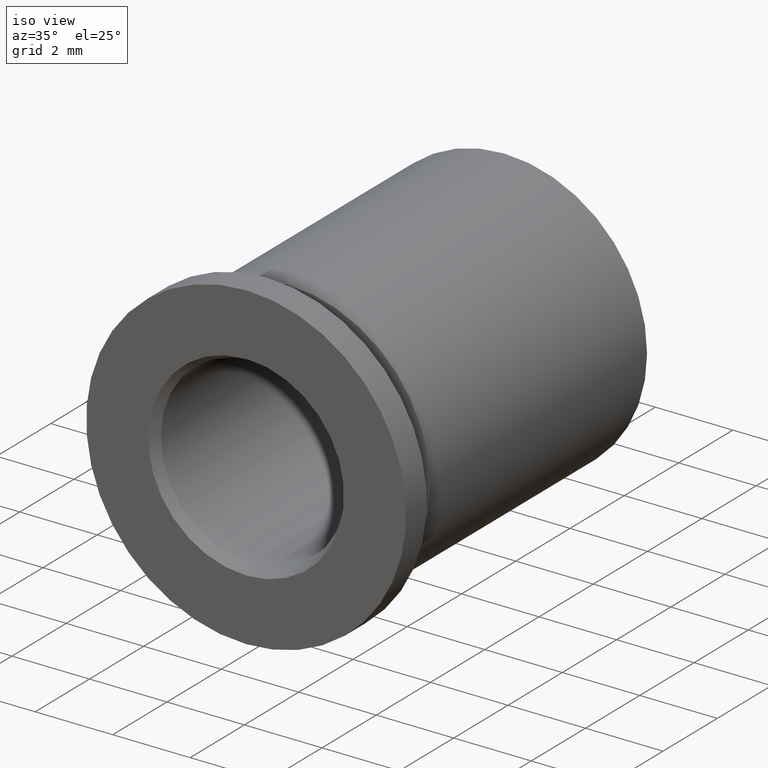
[diagram: clean part render]
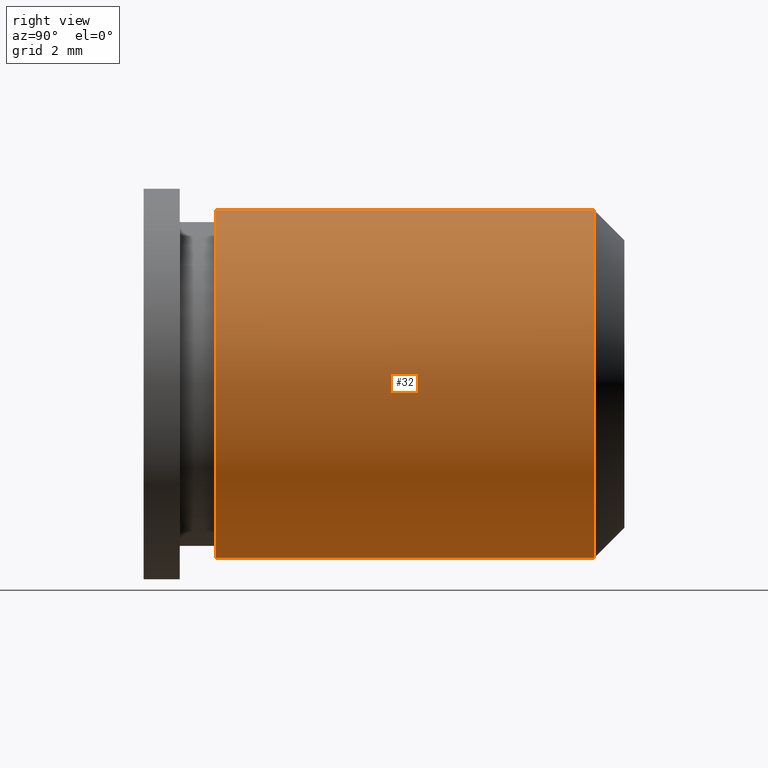
[diagram: tour spotlight — one face highlighted and labeled with its STEP entity id]
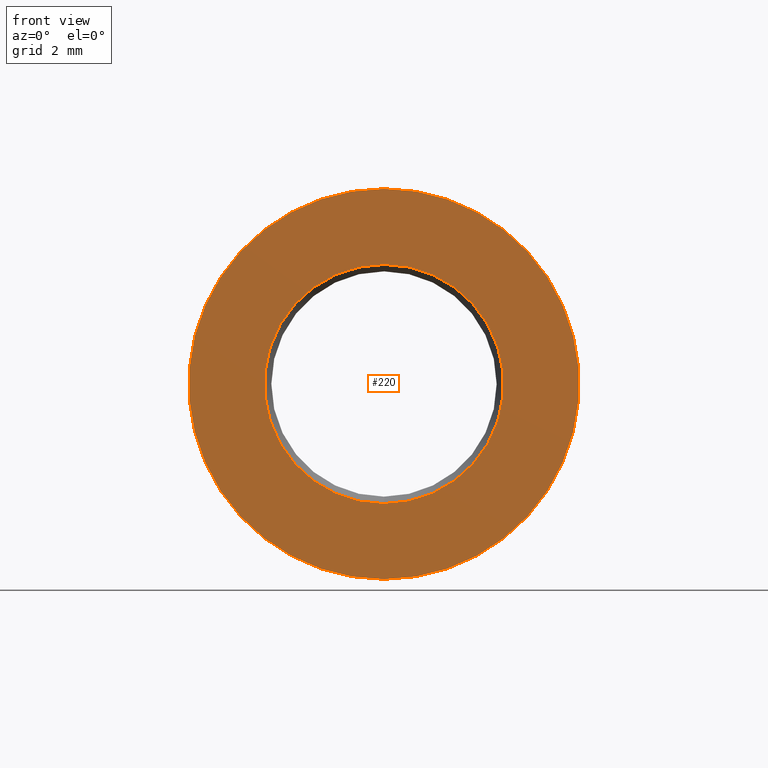
[diagram: tour spotlight — one face highlighted and labeled with its STEP entity id]
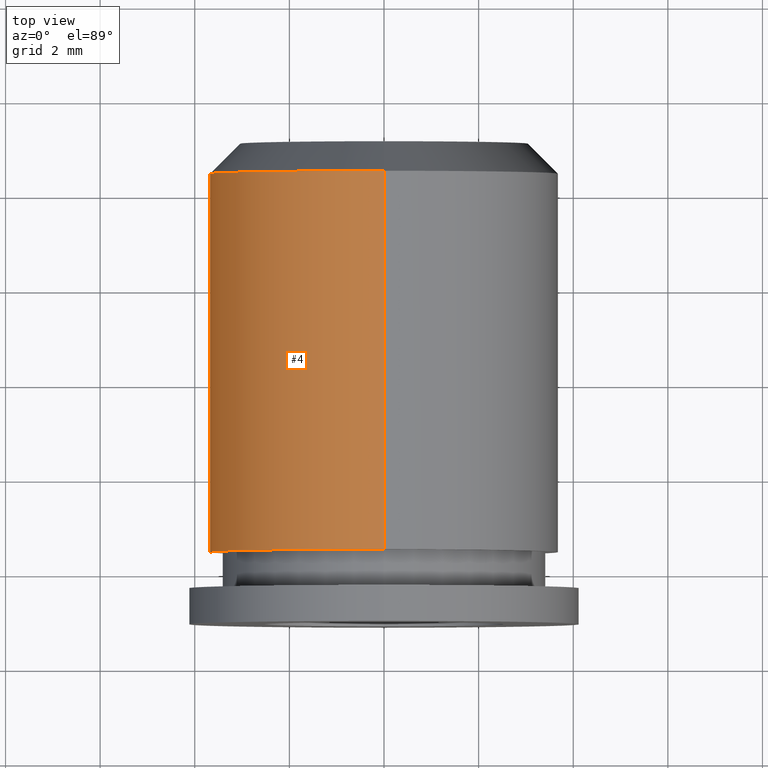
[diagram: tour spotlight — one face highlighted and labeled with its STEP entity id]
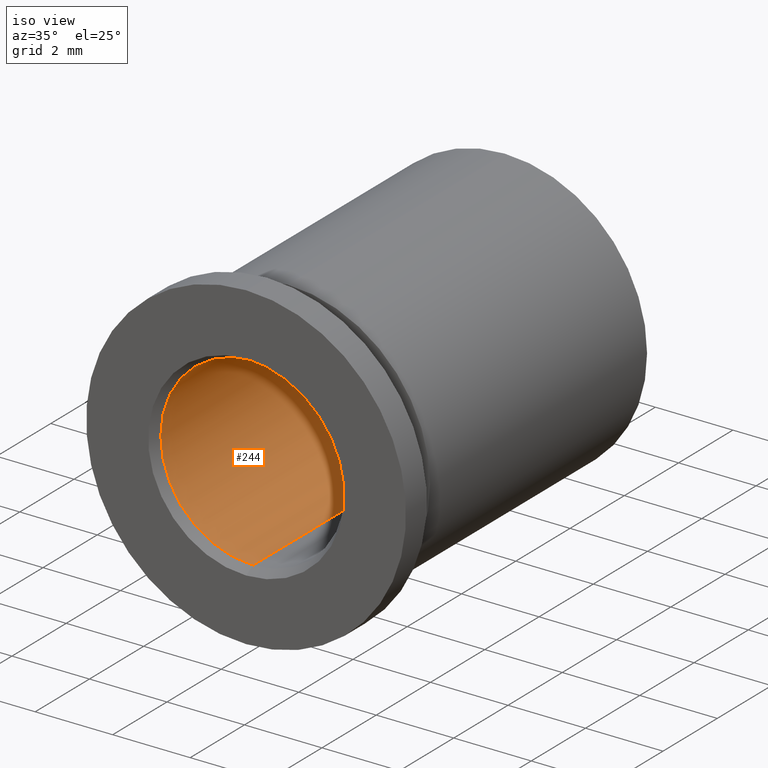
[diagram: tour spotlight — one face highlighted and labeled with its STEP entity id]
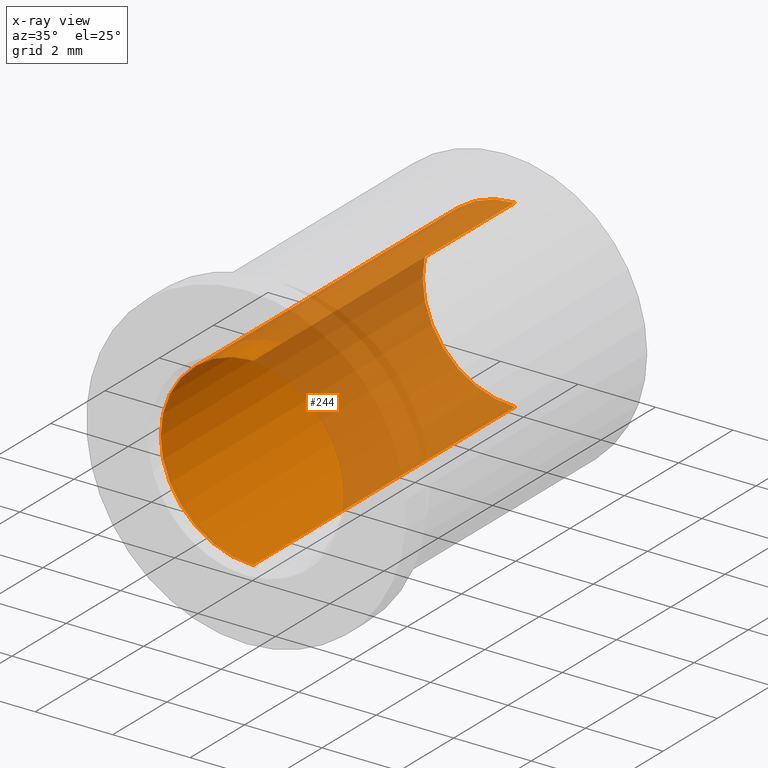
[diagram: x-ray of the same camera — body ghosted, this tour face saturated]
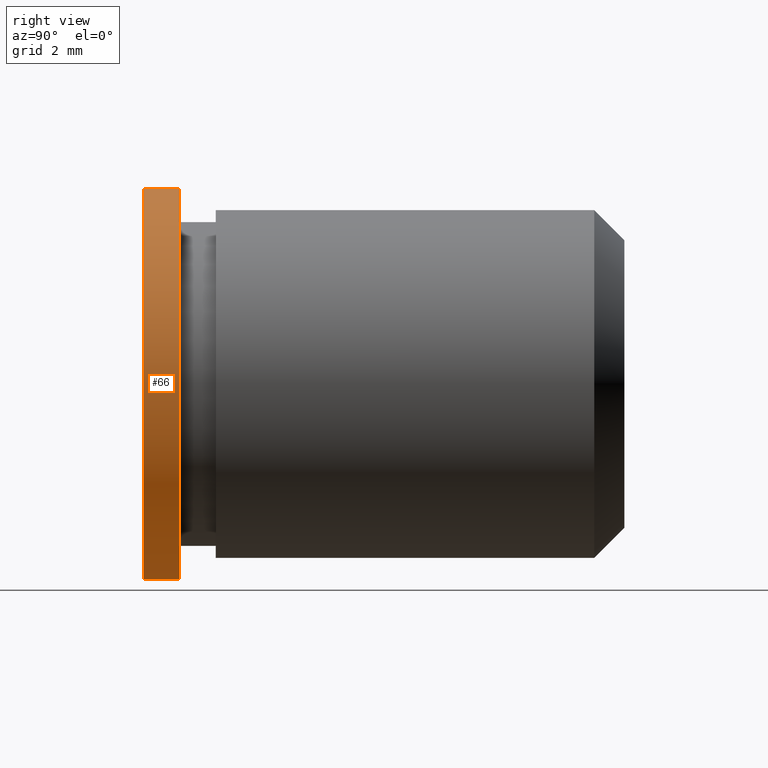
[diagram: tour spotlight — one face highlighted and labeled with its STEP entity id]
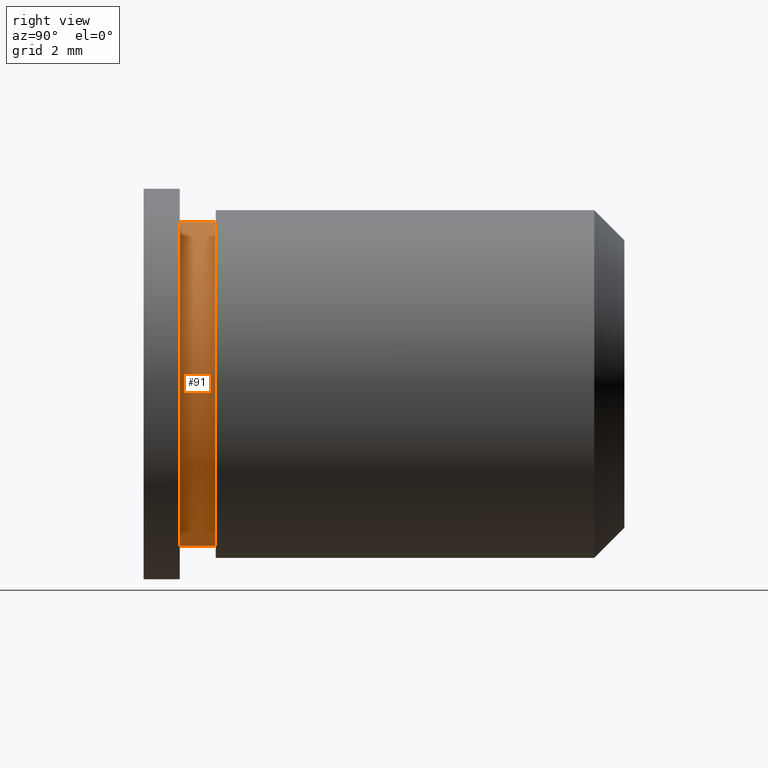
[diagram: tour spotlight — one face highlighted and labeled with its STEP entity id]
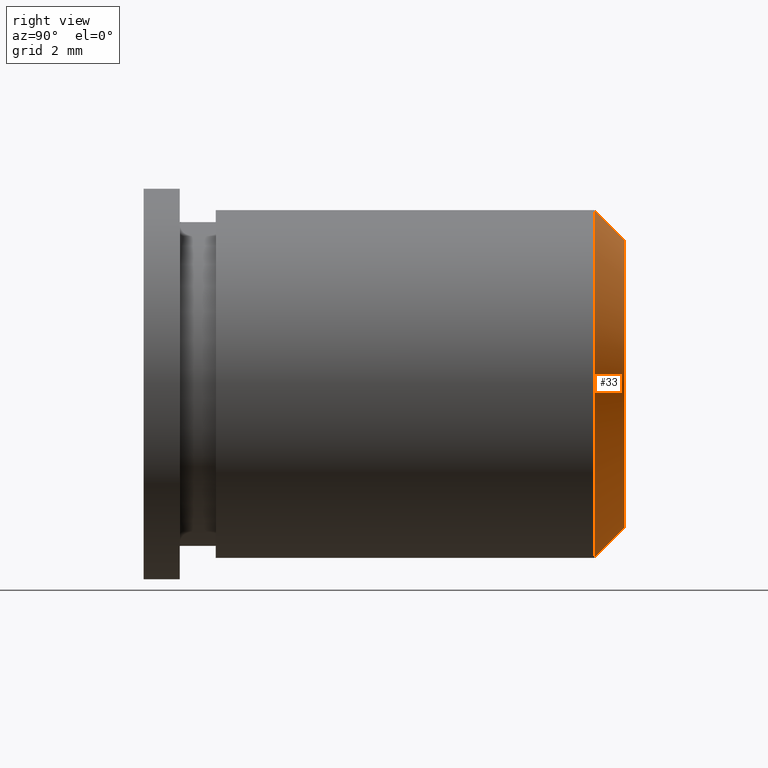
[diagram: tour spotlight — one face highlighted and labeled with its STEP entity id]
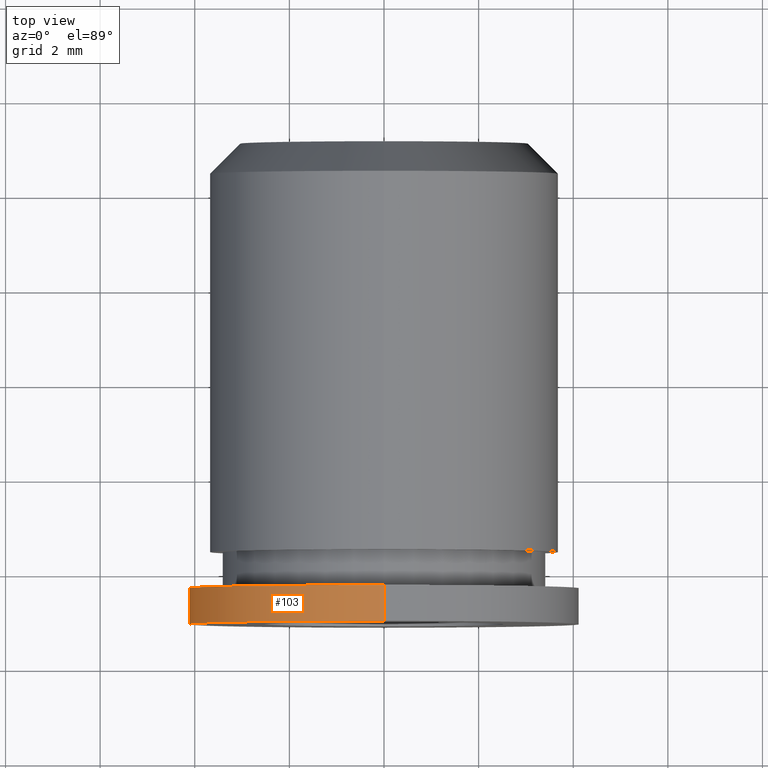
[diagram: tour spotlight — one face highlighted and labeled with its STEP entity id]
A machine part: a face-by-face anatomy tour. The part has 18 B-rep faces; the first image is the clean iso view, then the 8 largest visible faces are spotlighted one at a time (largest first), each with its STEP entity span.

Face 1 — right view, entity #32. In plain terms, the highlighted cylindrical surface (partial cylindrical patch) has radius 3.6766 mm, axis along (0, 1, 0).
Definition (entity closure, byte-faithful):
#28 = ORIENTED_EDGE ( 'NONE', *, *, #61, .F. ) ;
#30 = VERTEX_POINT ( 'NONE', #255 ) ;
#32 = ADVANCED_FACE ( 'NONE', ( #254 ), #332, .T. ) ;
#36 = ORIENTED_EDGE ( 'NONE', *, *, #90, .F. ) ;
#61 = EDGE_CURVE ( 'NONE', #125, #30, #291, .T. ) ;
#72 = EDGE_CURVE ( 'NONE', #87, #30, #517, .T. ) ;
#74 = ORIENTED_EDGE ( 'NONE', *, *, #100, .T. ) ;
#75 = VERTEX_POINT ( 'NONE', #396 ) ;
#87 = VERTEX_POINT ( 'NONE', #483 ) ;
#88 = ORIENTED_EDGE ( 'NONE', *, *, #72, .T. ) ;
#90 = EDGE_CURVE ( 'NONE', #75, #125, #430, .T. ) ;
#100 = EDGE_CURVE ( 'NONE', #75, #87, #419, .T. ) ;
#111 = EDGE_LOOP ( 'NONE', ( #74, #88, #28, #36 ) ) ;
#125 = VERTEX_POINT ( 'NONE', #646 ) ;
#214 = DIRECTION ( 'NONE',  ( 0.0000000000000000000, 0.0000000000000000000, 1.000000000000000000 ) ) ;
#215 = DIRECTION ( 'NONE',  ( 0.0000000000000000000, 1.000000000000000000, 0.0000000000000000000 ) ) ;
#254 = FACE_OUTER_BOUND ( 'NONE', #111, .T. ) ;
#255 = CARTESIAN_POINT ( 'NONE',  ( 1.958852332682297700E-015, 4.445000000000000300, -3.676649999999996000 ) ) ;
#291 = CIRCLE ( 'NONE', #347, 3.676649999999996000 ) ;
#304 = AXIS2_PLACEMENT_3D ( 'NONE', #367, #342, #328 ) ;
#328 = DIRECTION ( 'NONE',  ( 0.0000000000000000000, 0.0000000000000000000, 1.000000000000000000 ) ) ;
#332 = CYLINDRICAL_SURFACE ( 'NONE', #304, 3.676649999999997300 ) ;
#342 = DIRECTION ( 'NONE',  ( 0.0000000000000000000, 1.000000000000000000, 0.0000000000000000000 ) ) ;
#346 = CARTESIAN_POINT ( 'NONE',  ( 1.508592567273786700E-015, 4.445000000000000300, 0.0000000000000000000 ) ) ;
#347 = AXIS2_PLACEMENT_3D ( 'NONE', #346, #215, #214 ) ;
#367 = CARTESIAN_POINT ( 'NONE',  ( 1.508592567273786700E-015, 5.080000000000000100, 0.0000000000000000000 ) ) ;
#396 = CARTESIAN_POINT ( 'NONE',  ( 1.508592567273786700E-015, -3.556000000000000900, 3.676649999999999100 ) ) ;
#415 = DIRECTION ( 'NONE',  ( 0.0000000000000000000, 0.0000000000000000000, 1.000000000000000000 ) ) ;
#416 = DIRECTION ( 'NONE',  ( 0.0000000000000000000, 1.000000000000000000, 0.0000000000000000000 ) ) ;
#417 = CARTESIAN_POINT ( 'NONE',  ( 1.508592567273786700E-015, -3.556000000000000900, 0.0000000000000000000 ) ) ;
#418 = AXIS2_PLACEMENT_3D ( 'NONE', #417, #416, #415 ) ;
#419 = CIRCLE ( 'NONE', #418, 3.676649999999999100 ) ;
#427 = DIRECTION ( 'NONE',  ( 0.0000000000000000000, 1.000000000000000000, 0.0000000000000000000 ) ) ;
#428 = VECTOR ( 'NONE', #427, 1000.000000000000000 ) ;
#429 = CARTESIAN_POINT ( 'NONE',  ( 1.508592567273786700E-015, 5.080000000000000100, 3.676649999999997300 ) ) ;
#430 = LINE ( 'NONE', #429, #428 ) ;
#440 = DIRECTION ( 'NONE',  ( 0.0000000000000000000, 1.000000000000000000, 0.0000000000000000000 ) ) ;
#441 = VECTOR ( 'NONE', #440, 1000.000000000000000 ) ;
#442 = CARTESIAN_POINT ( 'NONE',  ( 1.958852332682297700E-015, 5.080000000000000100, -3.676649999999997300 ) ) ;
#483 = CARTESIAN_POINT ( 'NONE',  ( 1.958852332682298100E-015, -3.556000000000000900, -3.676649999999999100 ) ) ;
#517 = LINE ( 'NONE', #442, #441 ) ;
#646 = CARTESIAN_POINT ( 'NONE',  ( 1.508592567273786700E-015, 4.445000000000000300, 3.676649999999996000 ) ) ;

Face 2 — front view, entity #220. In plain terms, the highlighted planar face has unit normal (0, 1, 0).
Definition (entity closure, byte-faithful):
#50 = ORIENTED_EDGE ( 'NONE', *, *, #108, .F. ) ;
#102 = EDGE_CURVE ( 'NONE', #122, #123, #499, .T. ) ;
#108 = EDGE_CURVE ( 'NONE', #123, #122, #408, .T. ) ;
#122 = VERTEX_POINT ( 'NONE', #649 ) ;
#123 = VERTEX_POINT ( 'NONE', #580 ) ;
#165 = ORIENTED_EDGE ( 'NONE', *, *, #274, .T. ) ;
#219 = ORIENTED_EDGE ( 'NONE', *, *, #102, .F. ) ;
#220 = ADVANCED_FACE ( 'NONE', ( #714, #765 ), #766, .F. ) ;
#221 = EDGE_LOOP ( 'NONE', ( #286, #165 ) ) ;
#222 = EDGE_LOOP ( 'NONE', ( #219, #50 ) ) ;
#223 = EDGE_CURVE ( 'NONE', #224, #232, #705, .T. ) ;
#224 = VERTEX_POINT ( 'NONE', #693 ) ;
#232 = VERTEX_POINT ( 'NONE', #692 ) ;
#274 = EDGE_CURVE ( 'NONE', #232, #224, #697, .T. ) ;
#286 = ORIENTED_EDGE ( 'NONE', *, *, #223, .T. ) ;
#403 = AXIS2_PLACEMENT_3D ( 'NONE', #533, #532, #531 ) ;
#408 = CIRCLE ( 'NONE', #403, 4.127499999999999500 ) ;
#495 = DIRECTION ( 'NONE',  ( 0.0000000000000000000, 0.0000000000000000000, 1.000000000000000000 ) ) ;
#496 = DIRECTION ( 'NONE',  ( 0.0000000000000000000, 1.000000000000000000, 0.0000000000000000000 ) ) ;
#497 = CARTESIAN_POINT ( 'NONE',  ( 1.508592567273786700E-015, -5.080000000000000100, 0.0000000000000000000 ) ) ;
#498 = AXIS2_PLACEMENT_3D ( 'NONE', #497, #496, #495 ) ;
#499 = CIRCLE ( 'NONE', #498, 4.127499999999999500 ) ;
#531 = DIRECTION ( 'NONE',  ( 0.0000000000000000000, 0.0000000000000000000, 1.000000000000000000 ) ) ;
#532 = DIRECTION ( 'NONE',  ( 0.0000000000000000000, 1.000000000000000000, 0.0000000000000000000 ) ) ;
#533 = CARTESIAN_POINT ( 'NONE',  ( 1.508592567273786700E-015, -5.080000000000000100, 0.0000000000000000000 ) ) ;
#580 = CARTESIAN_POINT ( 'NONE',  ( 2.014065533621856500E-015, -5.080000000000000100, -4.127499999999999500 ) ) ;
#649 = CARTESIAN_POINT ( 'NONE',  ( 1.508592567273786700E-015, -5.080000000000000100, 4.127499999999999500 ) ) ;
#692 = CARTESIAN_POINT ( 'NONE',  ( 1.818170660363158800E-015, -5.080000000000000100, 2.527896968374165400 ) ) ;
#693 = CARTESIAN_POINT ( 'NONE',  ( 1.508592567273786700E-015, -5.080000000000000100, -2.527896968374165400 ) ) ;
#697 = CIRCLE ( 'NONE', #758, 2.527896968374165400 ) ;
#698 = CARTESIAN_POINT ( 'NONE',  ( 1.508592567273786700E-015, -5.080000000000000100, 0.0000000000000000000 ) ) ;
#703 = CARTESIAN_POINT ( 'NONE',  ( 1.508592567273786700E-015, -5.080000000000000100, 0.0000000000000000000 ) ) ;
#704 = AXIS2_PLACEMENT_3D ( 'NONE', #703, #707, #706 ) ;
#705 = CIRCLE ( 'NONE', #704, 2.527896968374165400 ) ;
#706 = DIRECTION ( 'NONE',  ( 0.0000000000000000000, 0.0000000000000000000, 1.000000000000000000 ) ) ;
#707 = DIRECTION ( 'NONE',  ( 0.0000000000000000000, 1.000000000000000000, 0.0000000000000000000 ) ) ;
#714 = FACE_OUTER_BOUND ( 'NONE', #222, .T. ) ;
#734 = DIRECTION ( 'NONE',  ( 0.0000000000000000000, 1.000000000000000000, 0.0000000000000000000 ) ) ;
#735 = CARTESIAN_POINT ( 'NONE',  ( 2.063750000000002000, -5.080000000000000100, 0.0000000000000000000 ) ) ;
#736 = AXIS2_PLACEMENT_3D ( 'NONE', #735, #734, #737 ) ;
#737 = DIRECTION ( 'NONE',  ( 0.0000000000000000000, 0.0000000000000000000, 1.000000000000000000 ) ) ;
#756 = DIRECTION ( 'NONE',  ( 0.0000000000000000000, 0.0000000000000000000, 1.000000000000000000 ) ) ;
#757 = DIRECTION ( 'NONE',  ( 0.0000000000000000000, 1.000000000000000000, 0.0000000000000000000 ) ) ;
#758 = AXIS2_PLACEMENT_3D ( 'NONE', #698, #757, #756 ) ;
#765 = FACE_BOUND ( 'NONE', #221, .T. ) ;
#766 = PLANE ( 'NONE',  #736 ) ;

Face 3 — top view, entity #4. In plain terms, the highlighted cylindrical surface (partial cylindrical patch) has radius 3.6766 mm, axis along (0, 1, 0).
Definition (entity closure, byte-faithful):
#4 = ADVANCED_FACE ( 'NONE', ( #158 ), #284, .T. ) ;
#18 = EDGE_CURVE ( 'NONE', #87, #75, #230, .T. ) ;
#23 = EDGE_LOOP ( 'NONE', ( #57, #58, #45, #46 ) ) ;
#30 = VERTEX_POINT ( 'NONE', #255 ) ;
#41 = EDGE_CURVE ( 'NONE', #30, #125, #375, .T. ) ;
#45 = ORIENTED_EDGE ( 'NONE', *, *, #90, .T. ) ;
#46 = ORIENTED_EDGE ( 'NONE', *, *, #41, .F. ) ;
#57 = ORIENTED_EDGE ( 'NONE', *, *, #72, .F. ) ;
#58 = ORIENTED_EDGE ( 'NONE', *, *, #18, .T. ) ;
#72 = EDGE_CURVE ( 'NONE', #87, #30, #517, .T. ) ;
#75 = VERTEX_POINT ( 'NONE', #396 ) ;
#87 = VERTEX_POINT ( 'NONE', #483 ) ;
#90 = EDGE_CURVE ( 'NONE', #75, #125, #430, .T. ) ;
#125 = VERTEX_POINT ( 'NONE', #646 ) ;
#158 = FACE_OUTER_BOUND ( 'NONE', #23, .T. ) ;
#205 = CARTESIAN_POINT ( 'NONE',  ( 1.508592567273786700E-015, 5.080000000000000100, 0.0000000000000000000 ) ) ;
#226 = DIRECTION ( 'NONE',  ( 0.0000000000000000000, 0.0000000000000000000, 1.000000000000000000 ) ) ;
#227 = DIRECTION ( 'NONE',  ( 0.0000000000000000000, 1.000000000000000000, 0.0000000000000000000 ) ) ;
#228 = CARTESIAN_POINT ( 'NONE',  ( 1.508592567273786700E-015, -3.556000000000000900, 0.0000000000000000000 ) ) ;
#229 = AXIS2_PLACEMENT_3D ( 'NONE', #228, #227, #226 ) ;
#230 = CIRCLE ( 'NONE', #229, 3.676649999999999100 ) ;
#255 = CARTESIAN_POINT ( 'NONE',  ( 1.958852332682297700E-015, 4.445000000000000300, -3.676649999999996000 ) ) ;
#281 = DIRECTION ( 'NONE',  ( 0.0000000000000000000, 0.0000000000000000000, 1.000000000000000000 ) ) ;
#282 = DIRECTION ( 'NONE',  ( 0.0000000000000000000, 1.000000000000000000, 0.0000000000000000000 ) ) ;
#283 = AXIS2_PLACEMENT_3D ( 'NONE', #205, #282, #281 ) ;
#284 = CYLINDRICAL_SURFACE ( 'NONE', #283, 3.676649999999997300 ) ;
#320 = DIRECTION ( 'NONE',  ( 0.0000000000000000000, 0.0000000000000000000, 1.000000000000000000 ) ) ;
#321 = DIRECTION ( 'NONE',  ( 0.0000000000000000000, 1.000000000000000000, 0.0000000000000000000 ) ) ;
#322 = CARTESIAN_POINT ( 'NONE',  ( 1.508592567273786700E-015, 4.445000000000000300, 0.0000000000000000000 ) ) ;
#374 = AXIS2_PLACEMENT_3D ( 'NONE', #322, #321, #320 ) ;
#375 = CIRCLE ( 'NONE', #374, 3.676649999999996000 ) ;
#396 = CARTESIAN_POINT ( 'NONE',  ( 1.508592567273786700E-015, -3.556000000000000900, 3.676649999999999100 ) ) ;
#427 = DIRECTION ( 'NONE',  ( 0.0000000000000000000, 1.000000000000000000, 0.0000000000000000000 ) ) ;
#428 = VECTOR ( 'NONE', #427, 1000.000000000000000 ) ;
#429 = CARTESIAN_POINT ( 'NONE',  ( 1.508592567273786700E-015, 5.080000000000000100, 3.676649999999997300 ) ) ;
#430 = LINE ( 'NONE', #429, #428 ) ;
#440 = DIRECTION ( 'NONE',  ( 0.0000000000000000000, 1.000000000000000000, 0.0000000000000000000 ) ) ;
#441 = VECTOR ( 'NONE', #440, 1000.000000000000000 ) ;
#442 = CARTESIAN_POINT ( 'NONE',  ( 1.958852332682297700E-015, 5.080000000000000100, -3.676649999999997300 ) ) ;
#483 = CARTESIAN_POINT ( 'NONE',  ( 1.958852332682298100E-015, -3.556000000000000900, -3.676649999999999100 ) ) ;
#517 = LINE ( 'NONE', #442, #441 ) ;
#646 = CARTESIAN_POINT ( 'NONE',  ( 1.508592567273786700E-015, 4.445000000000000300, 3.676649999999996000 ) ) ;

Face 4 — iso view, entity #244. An x-ray twin of the same camera follows (body ghosted, this face saturated) — the face is partly hidden behind the body. In plain terms, the highlighted cylindrical surface (partial cylindrical patch) has radius 2.3813 mm, axis along (0, 1, 0).
Definition (entity closure, byte-faithful):
#127 = ORIENTED_EDGE ( 'NONE', *, *, #242, .F. ) ;
#128 = EDGE_CURVE ( 'NONE', #280, #236, #604, .T. ) ;
#140 = VERTEX_POINT ( 'NONE', #619 ) ;
#203 = ORIENTED_EDGE ( 'NONE', *, *, #204, .F. ) ;
#204 = EDGE_CURVE ( 'NONE', #140, #236, #764, .T. ) ;
#235 = ORIENTED_EDGE ( 'NONE', *, *, #128, .T. ) ;
#236 = VERTEX_POINT ( 'NONE', #715 ) ;
#242 = EDGE_CURVE ( 'NONE', #243, #140, #726, .T. ) ;
#243 = VERTEX_POINT ( 'NONE', #752 ) ;
#244 = ADVANCED_FACE ( 'NONE', ( #751 ), #767, .F. ) ;
#278 = ORIENTED_EDGE ( 'NONE', *, *, #279, .T. ) ;
#279 = EDGE_CURVE ( 'NONE', #243, #280, #721, .T. ) ;
#280 = VERTEX_POINT ( 'NONE', #717 ) ;
#287 = EDGE_LOOP ( 'NONE', ( #127, #278, #235, #203 ) ) ;
#576 = CARTESIAN_POINT ( 'NONE',  ( 1.508592567273786700E-015, 4.826000000000000500, 0.0000000000000000000 ) ) ;
#577 = AXIS2_PLACEMENT_3D ( 'NONE', #576, #623, #622 ) ;
#604 = CIRCLE ( 'NONE', #577, 2.381250000000000500 ) ;
#619 = CARTESIAN_POINT ( 'NONE',  ( 1.508592567273786700E-015, -4.826000000000001400, 2.381250000000001000 ) ) ;
#622 = DIRECTION ( 'NONE',  ( 0.0000000000000000000, 0.0000000000000000000, 1.000000000000000000 ) ) ;
#623 = DIRECTION ( 'NONE',  ( 0.0000000000000000000, 1.000000000000000000, 0.0000000000000000000 ) ) ;
#660 = DIRECTION ( 'NONE',  ( 0.0000000000000000000, 0.0000000000000000000, 1.000000000000000000 ) ) ;
#674 = DIRECTION ( 'NONE',  ( 0.0000000000000000000, 1.000000000000000000, 0.0000000000000000000 ) ) ;
#681 = DIRECTION ( 'NONE',  ( 0.0000000000000000000, 1.000000000000000000, 0.0000000000000000000 ) ) ;
#682 = CARTESIAN_POINT ( 'NONE',  ( 1.508592567273786700E-015, 5.080000000000000100, 0.0000000000000000000 ) ) ;
#683 = AXIS2_PLACEMENT_3D ( 'NONE', #682, #681, #660 ) ;
#700 = DIRECTION ( 'NONE',  ( 0.0000000000000000000, 0.0000000000000000000, 1.000000000000000000 ) ) ;
#701 = DIRECTION ( 'NONE',  ( 0.0000000000000000000, 1.000000000000000000, 0.0000000000000000000 ) ) ;
#702 = CARTESIAN_POINT ( 'NONE',  ( 1.508592567273786700E-015, -4.826000000000001400, 0.0000000000000000000 ) ) ;
#712 = VECTOR ( 'NONE', #674, 1000.000000000000000 ) ;
#715 = CARTESIAN_POINT ( 'NONE',  ( 1.508592567273786700E-015, 4.826000000000000500, 2.381250000000000500 ) ) ;
#717 = CARTESIAN_POINT ( 'NONE',  ( 1.809191123341954300E-015, 4.826000000000000500, -2.381250000000000500 ) ) ;
#718 = DIRECTION ( 'NONE',  ( 0.0000000000000000000, 1.000000000000000000, 0.0000000000000000000 ) ) ;
#719 = VECTOR ( 'NONE', #718, 1000.000000000000000 ) ;
#720 = CARTESIAN_POINT ( 'NONE',  ( 1.800211586320750200E-015, 5.080000000000000100, -2.381250000000000500 ) ) ;
#721 = LINE ( 'NONE', #720, #719 ) ;
#725 = AXIS2_PLACEMENT_3D ( 'NONE', #702, #701, #700 ) ;
#726 = CIRCLE ( 'NONE', #725, 2.381250000000001000 ) ;
#751 = FACE_OUTER_BOUND ( 'NONE', #287, .T. ) ;
#752 = CARTESIAN_POINT ( 'NONE',  ( 1.800211586320750200E-015, -4.826000000000001400, -2.381250000000001000 ) ) ;
#764 = LINE ( 'NONE', #771, #712 ) ;
#767 = CYLINDRICAL_SURFACE ( 'NONE', #683, 2.381250000000000500 ) ;
#771 = CARTESIAN_POINT ( 'NONE',  ( 1.508592567273786700E-015, 5.080000000000000100, 2.381250000000000500 ) ) ;

Face 5 — right view, entity #66. In plain terms, the highlighted cylindrical surface (partial cylindrical patch) has radius 4.1275 mm, axis along (0, 1, 0).
Definition (entity closure, byte-faithful):
#62 = EDGE_CURVE ( 'NONE', #63, #124, #551, .T. ) ;
#63 = VERTEX_POINT ( 'NONE', #538 ) ;
#64 = ORIENTED_EDGE ( 'NONE', *, *, #65, .F. ) ;
#65 = EDGE_CURVE ( 'NONE', #122, #63, #507, .T. ) ;
#66 = ADVANCED_FACE ( 'NONE', ( #394 ), #557, .T. ) ;
#67 = EDGE_LOOP ( 'NONE', ( #68, #77, #86, #64 ) ) ;
#68 = ORIENTED_EDGE ( 'NONE', *, *, #102, .T. ) ;
#77 = ORIENTED_EDGE ( 'NONE', *, *, #85, .T. ) ;
#85 = EDGE_CURVE ( 'NONE', #123, #124, #487, .T. ) ;
#86 = ORIENTED_EDGE ( 'NONE', *, *, #62, .F. ) ;
#102 = EDGE_CURVE ( 'NONE', #122, #123, #499, .T. ) ;
#122 = VERTEX_POINT ( 'NONE', #649 ) ;
#123 = VERTEX_POINT ( 'NONE', #580 ) ;
#124 = VERTEX_POINT ( 'NONE', #593 ) ;
#394 = FACE_OUTER_BOUND ( 'NONE', #67, .T. ) ;
#395 = VECTOR ( 'NONE', #489, 1000.000000000000000 ) ;
#414 = AXIS2_PLACEMENT_3D ( 'NONE', #555, #537, #443 ) ;
#443 = DIRECTION ( 'NONE',  ( 0.0000000000000000000, 0.0000000000000000000, 1.000000000000000000 ) ) ;
#444 = CARTESIAN_POINT ( 'NONE',  ( 1.508592567273786700E-015, 5.080000000000000100, 0.0000000000000000000 ) ) ;
#484 = DIRECTION ( 'NONE',  ( 0.0000000000000000000, 1.000000000000000000, 0.0000000000000000000 ) ) ;
#485 = VECTOR ( 'NONE', #484, 1000.000000000000000 ) ;
#486 = CARTESIAN_POINT ( 'NONE',  ( 2.014065533621856500E-015, 5.080000000000000100, -4.127499999999999500 ) ) ;
#487 = LINE ( 'NONE', #486, #485 ) ;
#489 = DIRECTION ( 'NONE',  ( 0.0000000000000000000, 1.000000000000000000, 0.0000000000000000000 ) ) ;
#495 = DIRECTION ( 'NONE',  ( 0.0000000000000000000, 0.0000000000000000000, 1.000000000000000000 ) ) ;
#496 = DIRECTION ( 'NONE',  ( 0.0000000000000000000, 1.000000000000000000, 0.0000000000000000000 ) ) ;
#497 = CARTESIAN_POINT ( 'NONE',  ( 1.508592567273786700E-015, -5.080000000000000100, 0.0000000000000000000 ) ) ;
#498 = AXIS2_PLACEMENT_3D ( 'NONE', #497, #496, #495 ) ;
#499 = CIRCLE ( 'NONE', #498, 4.127499999999999500 ) ;
#506 = CARTESIAN_POINT ( 'NONE',  ( 1.508592567273786700E-015, 5.080000000000000100, 4.127499999999999500 ) ) ;
#507 = LINE ( 'NONE', #506, #395 ) ;
#537 = DIRECTION ( 'NONE',  ( 0.0000000000000000000, 1.000000000000000000, 0.0000000000000000000 ) ) ;
#538 = CARTESIAN_POINT ( 'NONE',  ( 1.508592567273786700E-015, -4.317999999999999600, 4.127499999999999500 ) ) ;
#551 = CIRCLE ( 'NONE', #414, 4.127499999999999500 ) ;
#555 = CARTESIAN_POINT ( 'NONE',  ( 1.508592567273786700E-015, -4.317999999999999600, 0.0000000000000000000 ) ) ;
#556 = AXIS2_PLACEMENT_3D ( 'NONE', #444, #564, #563 ) ;
#557 = CYLINDRICAL_SURFACE ( 'NONE', #556, 4.127499999999999500 ) ;
#563 = DIRECTION ( 'NONE',  ( 0.0000000000000000000, 0.0000000000000000000, 1.000000000000000000 ) ) ;
#564 = DIRECTION ( 'NONE',  ( 0.0000000000000000000, 1.000000000000000000, 0.0000000000000000000 ) ) ;
#580 = CARTESIAN_POINT ( 'NONE',  ( 2.014065533621856500E-015, -5.080000000000000100, -4.127499999999999500 ) ) ;
#593 = CARTESIAN_POINT ( 'NONE',  ( 2.014065533621856500E-015, -4.317999999999999600, -4.127499999999999500 ) ) ;
#649 = CARTESIAN_POINT ( 'NONE',  ( 1.508592567273786700E-015, -5.080000000000000100, 4.127499999999999500 ) ) ;

Face 6 — right view, entity #91. In plain terms, the highlighted cylindrical surface (partial cylindrical patch) has radius 3.4226 mm, axis along (0, 1, 0).
Definition (entity closure, byte-faithful):
#34 = ORIENTED_EDGE ( 'NONE', *, *, #35, .T. ) ;
#35 = EDGE_CURVE ( 'NONE', #117, #92, #355, .T. ) ;
#79 = ORIENTED_EDGE ( 'NONE', *, *, #80, .F. ) ;
#80 = EDGE_CURVE ( 'NONE', #120, #94, #446, .T. ) ;
#91 = ADVANCED_FACE ( 'NONE', ( #573 ), #467, .T. ) ;
#92 = VERTEX_POINT ( 'NONE', #436 ) ;
#93 = ORIENTED_EDGE ( 'NONE', *, *, #101, .F. ) ;
#94 = VERTEX_POINT ( 'NONE', #435 ) ;
#101 = EDGE_CURVE ( 'NONE', #94, #92, #505, .T. ) ;
#104 = EDGE_LOOP ( 'NONE', ( #119, #34, #93, #79 ) ) ;
#116 = EDGE_CURVE ( 'NONE', #120, #117, #525, .T. ) ;
#117 = VERTEX_POINT ( 'NONE', #461 ) ;
#119 = ORIENTED_EDGE ( 'NONE', *, *, #116, .T. ) ;
#120 = VERTEX_POINT ( 'NONE', #605 ) ;
#315 = VECTOR ( 'NONE', #353, 1000.000000000000000 ) ;
#353 = DIRECTION ( 'NONE',  ( 0.0000000000000000000, 1.000000000000000000, 0.0000000000000000000 ) ) ;
#354 = CARTESIAN_POINT ( 'NONE',  ( 1.927746303983955100E-015, 5.080000000000000100, -3.422649999999999500 ) ) ;
#355 = LINE ( 'NONE', #354, #315 ) ;
#435 = CARTESIAN_POINT ( 'NONE',  ( 1.508592567273786700E-015, -3.556000000000000900, 3.422649999999999500 ) ) ;
#436 = CARTESIAN_POINT ( 'NONE',  ( 1.927746303983955100E-015, -3.556000000000000900, -3.422649999999999500 ) ) ;
#437 = DIRECTION ( 'NONE',  ( 0.0000000000000000000, 0.0000000000000000000, 1.000000000000000000 ) ) ;
#438 = DIRECTION ( 'NONE',  ( 0.0000000000000000000, 1.000000000000000000, 0.0000000000000000000 ) ) ;
#439 = AXIS2_PLACEMENT_3D ( 'NONE', #468, #438, #437 ) ;
#446 = LINE ( 'NONE', #536, #535 ) ;
#461 = CARTESIAN_POINT ( 'NONE',  ( 1.927746303983955100E-015, -4.317999999999999600, -3.422649999999999500 ) ) ;
#462 = DIRECTION ( 'NONE',  ( 0.0000000000000000000, 0.0000000000000000000, 1.000000000000000000 ) ) ;
#463 = DIRECTION ( 'NONE',  ( 0.0000000000000000000, 1.000000000000000000, 0.0000000000000000000 ) ) ;
#464 = CARTESIAN_POINT ( 'NONE',  ( 1.508592567273786700E-015, -4.317999999999999600, 0.0000000000000000000 ) ) ;
#465 = AXIS2_PLACEMENT_3D ( 'NONE', #464, #463, #462 ) ;
#467 = CYLINDRICAL_SURFACE ( 'NONE', #439, 3.422649999999999500 ) ;
#468 = CARTESIAN_POINT ( 'NONE',  ( 1.508592567273786700E-015, 5.080000000000000100, 0.0000000000000000000 ) ) ;
#501 = DIRECTION ( 'NONE',  ( 0.0000000000000000000, 0.0000000000000000000, 1.000000000000000000 ) ) ;
#502 = DIRECTION ( 'NONE',  ( 0.0000000000000000000, 1.000000000000000000, 0.0000000000000000000 ) ) ;
#503 = CARTESIAN_POINT ( 'NONE',  ( 1.508592567273786700E-015, -3.556000000000000900, 0.0000000000000000000 ) ) ;
#504 = AXIS2_PLACEMENT_3D ( 'NONE', #503, #502, #501 ) ;
#505 = CIRCLE ( 'NONE', #504, 3.422649999999999500 ) ;
#525 = CIRCLE ( 'NONE', #465, 3.422649999999999500 ) ;
#534 = DIRECTION ( 'NONE',  ( 0.0000000000000000000, 1.000000000000000000, 0.0000000000000000000 ) ) ;
#535 = VECTOR ( 'NONE', #534, 1000.000000000000000 ) ;
#536 = CARTESIAN_POINT ( 'NONE',  ( 1.508592567273786700E-015, 5.080000000000000100, 3.422649999999999500 ) ) ;
#573 = FACE_OUTER_BOUND ( 'NONE', #104, .T. ) ;
#605 = CARTESIAN_POINT ( 'NONE',  ( 1.508592567273786700E-015, -4.317999999999999600, 3.422649999999999500 ) ) ;

Face 7 — right view, entity #33. In plain terms, the highlighted conical surface has half-angle 45 deg.
Definition (entity closure, byte-faithful):
#25 = EDGE_LOOP ( 'NONE', ( #112, #78, #81, #110 ) ) ;
#26 = EDGE_CURVE ( 'NONE', #113, #125, #260, .T. ) ;
#29 = VERTEX_POINT ( 'NONE', #256 ) ;
#30 = VERTEX_POINT ( 'NONE', #255 ) ;
#33 = ADVANCED_FACE ( 'NONE', ( #294 ), #309, .T. ) ;
#61 = EDGE_CURVE ( 'NONE', #125, #30, #291, .T. ) ;
#78 = ORIENTED_EDGE ( 'NONE', *, *, #26, .T. ) ;
#81 = ORIENTED_EDGE ( 'NONE', *, *, #61, .T. ) ;
#95 = EDGE_CURVE ( 'NONE', #113, #29, #434, .T. ) ;
#110 = ORIENTED_EDGE ( 'NONE', *, *, #115, .F. ) ;
#112 = ORIENTED_EDGE ( 'NONE', *, *, #95, .F. ) ;
#113 = VERTEX_POINT ( 'NONE', #530 ) ;
#115 = EDGE_CURVE ( 'NONE', #29, #30, #529, .T. ) ;
#125 = VERTEX_POINT ( 'NONE', #646 ) ;
#214 = DIRECTION ( 'NONE',  ( 0.0000000000000000000, 0.0000000000000000000, 1.000000000000000000 ) ) ;
#215 = DIRECTION ( 'NONE',  ( 0.0000000000000000000, 1.000000000000000000, 0.0000000000000000000 ) ) ;
#255 = CARTESIAN_POINT ( 'NONE',  ( 1.958852332682297700E-015, 4.445000000000000300, -3.676649999999996000 ) ) ;
#256 = CARTESIAN_POINT ( 'NONE',  ( 1.508592567273786700E-015, 5.079999999999999200, -3.041649999999998400 ) ) ;
#257 = DIRECTION ( 'NONE',  ( 8.659560562354921800E-017, -0.7071067811865484600, 0.7071067811865465700 ) ) ;
#258 = VECTOR ( 'NONE', #257, 1000.000000000000000 ) ;
#259 = CARTESIAN_POINT ( 'NONE',  ( 1.881087260936441500E-015, 5.079999999999999200, 3.041649999999998400 ) ) ;
#260 = LINE ( 'NONE', #259, #258 ) ;
#291 = CIRCLE ( 'NONE', #347, 3.676649999999996000 ) ;
#294 = FACE_OUTER_BOUND ( 'NONE', #25, .T. ) ;
#309 = CONICAL_SURFACE ( 'NONE', #373, 3.041649999999998400, 0.7853981633974469500 ) ;
#313 = DIRECTION ( 'NONE',  ( 0.0000000000000000000, 0.0000000000000000000, -1.000000000000000000 ) ) ;
#346 = CARTESIAN_POINT ( 'NONE',  ( 1.508592567273786700E-015, 4.445000000000000300, 0.0000000000000000000 ) ) ;
#347 = AXIS2_PLACEMENT_3D ( 'NONE', #346, #215, #214 ) ;
#370 = DIRECTION ( 'NONE',  ( 0.0000000000000000000, -1.000000000000000000, 0.0000000000000000000 ) ) ;
#372 = CARTESIAN_POINT ( 'NONE',  ( 1.508592567273786700E-015, 5.079999999999999200, 0.0000000000000000000 ) ) ;
#373 = AXIS2_PLACEMENT_3D ( 'NONE', #372, #370, #313 ) ;
#434 = CIRCLE ( 'NONE', #479, 3.041649999999998400 ) ;
#476 = DIRECTION ( 'NONE',  ( 0.0000000000000000000, 0.0000000000000000000, 1.000000000000000000 ) ) ;
#477 = DIRECTION ( 'NONE',  ( 0.0000000000000000000, 1.000000000000000000, 0.0000000000000000000 ) ) ;
#478 = CARTESIAN_POINT ( 'NONE',  ( 1.508592567273786700E-015, 5.079999999999999200, 0.0000000000000000000 ) ) ;
#479 = AXIS2_PLACEMENT_3D ( 'NONE', #478, #477, #476 ) ;
#526 = DIRECTION ( 'NONE',  ( 0.0000000000000000000, -0.7071067811865484600, -0.7071067811865465700 ) ) ;
#527 = VECTOR ( 'NONE', #526, 1000.000000000000000 ) ;
#528 = CARTESIAN_POINT ( 'NONE',  ( 1.508592567273786700E-015, 5.079999999999999200, -3.041649999999998400 ) ) ;
#529 = LINE ( 'NONE', #528, #527 ) ;
#530 = CARTESIAN_POINT ( 'NONE',  ( 1.919969796809369600E-015, 5.079999999999999200, 3.041649999999998400 ) ) ;
#646 = CARTESIAN_POINT ( 'NONE',  ( 1.508592567273786700E-015, 4.445000000000000300, 3.676649999999996000 ) ) ;

Face 8 — top view, entity #103. In plain terms, the highlighted cylindrical surface (partial cylindrical patch) has radius 4.1275 mm, axis along (0, 1, 0).
Definition (entity closure, byte-faithful):
#63 = VERTEX_POINT ( 'NONE', #538 ) ;
#65 = EDGE_CURVE ( 'NONE', #122, #63, #507, .T. ) ;
#83 = ORIENTED_EDGE ( 'NONE', *, *, #84, .F. ) ;
#84 = EDGE_CURVE ( 'NONE', #124, #63, #449, .T. ) ;
#85 = EDGE_CURVE ( 'NONE', #123, #124, #487, .T. ) ;
#103 = ADVANCED_FACE ( 'NONE', ( #494 ), #407, .T. ) ;
#106 = ORIENTED_EDGE ( 'NONE', *, *, #85, .F. ) ;
#107 = ORIENTED_EDGE ( 'NONE', *, *, #108, .T. ) ;
#108 = EDGE_CURVE ( 'NONE', #123, #122, #408, .T. ) ;
#109 = ORIENTED_EDGE ( 'NONE', *, *, #65, .T. ) ;
#122 = VERTEX_POINT ( 'NONE', #649 ) ;
#123 = VERTEX_POINT ( 'NONE', #580 ) ;
#124 = VERTEX_POINT ( 'NONE', #593 ) ;
#126 = EDGE_LOOP ( 'NONE', ( #106, #107, #109, #83 ) ) ;
#395 = VECTOR ( 'NONE', #489, 1000.000000000000000 ) ;
#403 = AXIS2_PLACEMENT_3D ( 'NONE', #533, #532, #531 ) ;
#404 = DIRECTION ( 'NONE',  ( 0.0000000000000000000, 0.0000000000000000000, 1.000000000000000000 ) ) ;
#405 = DIRECTION ( 'NONE',  ( 0.0000000000000000000, 1.000000000000000000, 0.0000000000000000000 ) ) ;
#406 = AXIS2_PLACEMENT_3D ( 'NONE', #409, #405, #404 ) ;
#407 = CYLINDRICAL_SURFACE ( 'NONE', #406, 4.127499999999999500 ) ;
#408 = CIRCLE ( 'NONE', #403, 4.127499999999999500 ) ;
#409 = CARTESIAN_POINT ( 'NONE',  ( 1.508592567273786700E-015, 5.080000000000000100, 0.0000000000000000000 ) ) ;
#411 = DIRECTION ( 'NONE',  ( 0.0000000000000000000, 0.0000000000000000000, 1.000000000000000000 ) ) ;
#412 = DIRECTION ( 'NONE',  ( 0.0000000000000000000, 1.000000000000000000, 0.0000000000000000000 ) ) ;
#413 = AXIS2_PLACEMENT_3D ( 'NONE', #448, #412, #411 ) ;
#448 = CARTESIAN_POINT ( 'NONE',  ( 1.508592567273786700E-015, -4.317999999999999600, 0.0000000000000000000 ) ) ;
#449 = CIRCLE ( 'NONE', #413, 4.127499999999999500 ) ;
#484 = DIRECTION ( 'NONE',  ( 0.0000000000000000000, 1.000000000000000000, 0.0000000000000000000 ) ) ;
#485 = VECTOR ( 'NONE', #484, 1000.000000000000000 ) ;
#486 = CARTESIAN_POINT ( 'NONE',  ( 2.014065533621856500E-015, 5.080000000000000100, -4.127499999999999500 ) ) ;
#487 = LINE ( 'NONE', #486, #485 ) ;
#489 = DIRECTION ( 'NONE',  ( 0.0000000000000000000, 1.000000000000000000, 0.0000000000000000000 ) ) ;
#494 = FACE_OUTER_BOUND ( 'NONE', #126, .T. ) ;
#506 = CARTESIAN_POINT ( 'NONE',  ( 1.508592567273786700E-015, 5.080000000000000100, 4.127499999999999500 ) ) ;
#507 = LINE ( 'NONE', #506, #395 ) ;
#531 = DIRECTION ( 'NONE',  ( 0.0000000000000000000, 0.0000000000000000000, 1.000000000000000000 ) ) ;
#532 = DIRECTION ( 'NONE',  ( 0.0000000000000000000, 1.000000000000000000, 0.0000000000000000000 ) ) ;
#533 = CARTESIAN_POINT ( 'NONE',  ( 1.508592567273786700E-015, -5.080000000000000100, 0.0000000000000000000 ) ) ;
#538 = CARTESIAN_POINT ( 'NONE',  ( 1.508592567273786700E-015, -4.317999999999999600, 4.127499999999999500 ) ) ;
#580 = CARTESIAN_POINT ( 'NONE',  ( 2.014065533621856500E-015, -5.080000000000000100, -4.127499999999999500 ) ) ;
#593 = CARTESIAN_POINT ( 'NONE',  ( 2.014065533621856500E-015, -4.317999999999999600, -4.127499999999999500 ) ) ;
#649 = CARTESIAN_POINT ( 'NONE',  ( 1.508592567273786700E-015, -5.080000000000000100, 4.127499999999999500 ) ) ;